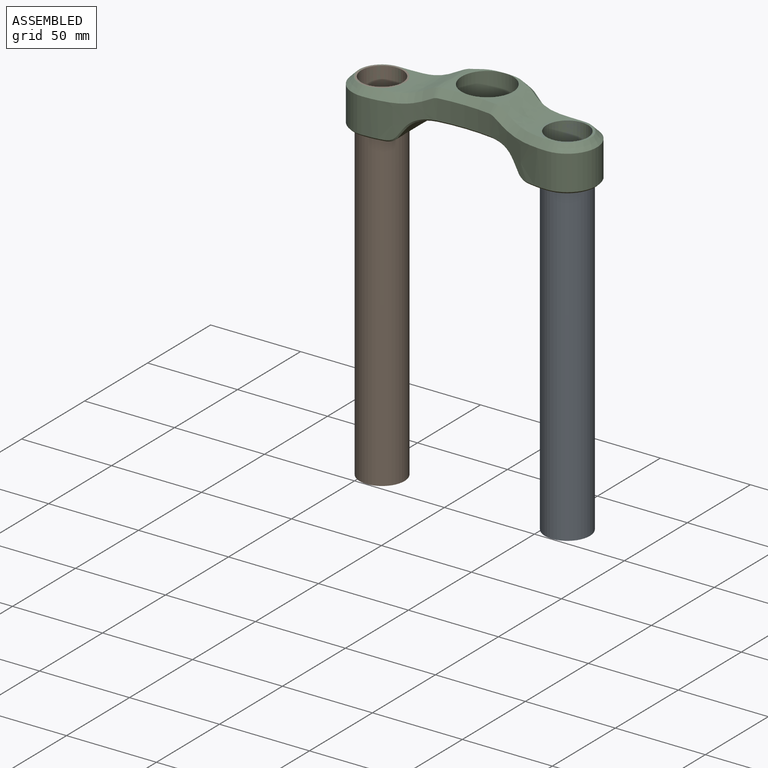
[diagram: assembled view]
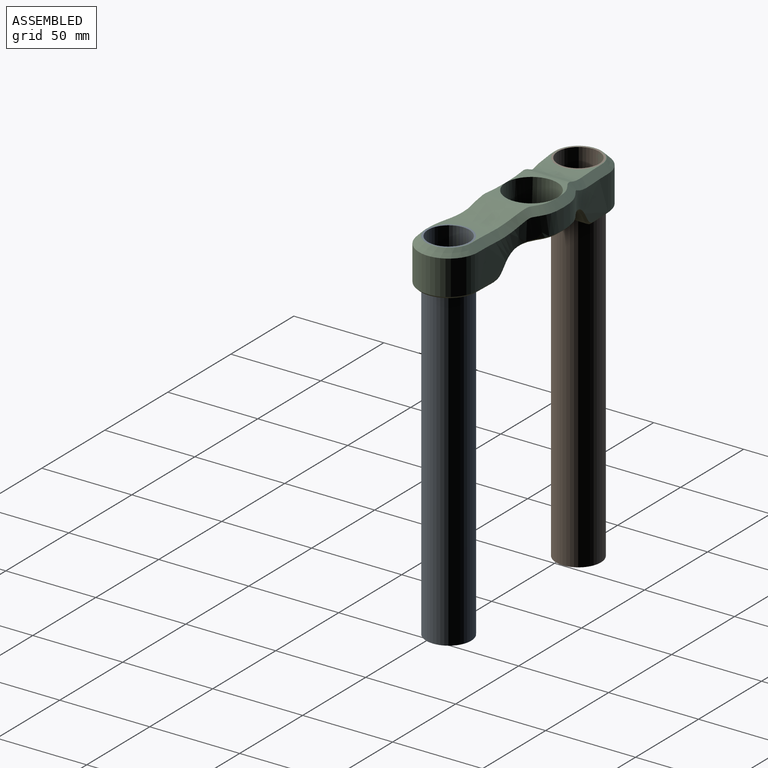
[diagram: assembled view, second angle]
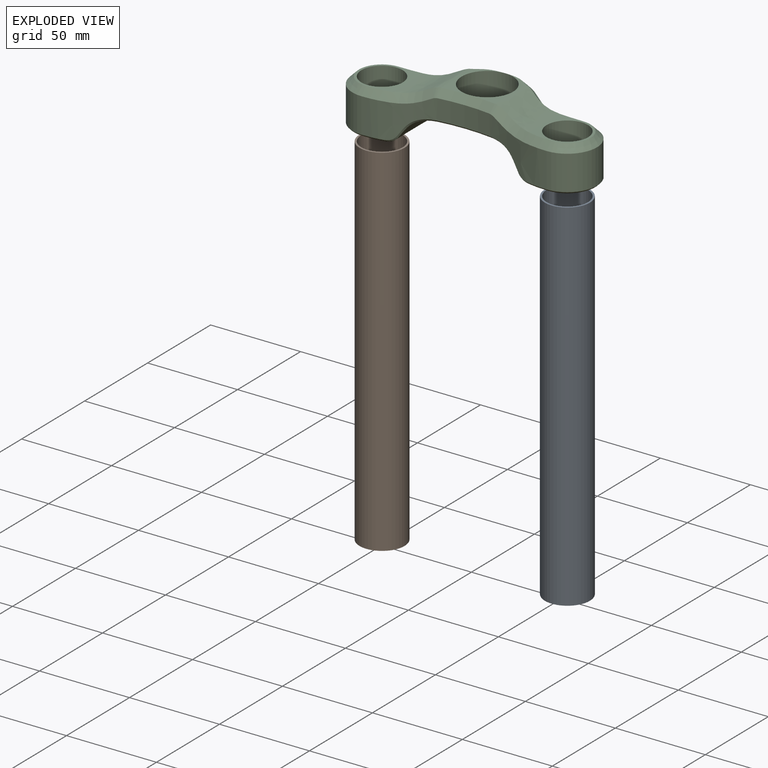
[diagram: exploded view]
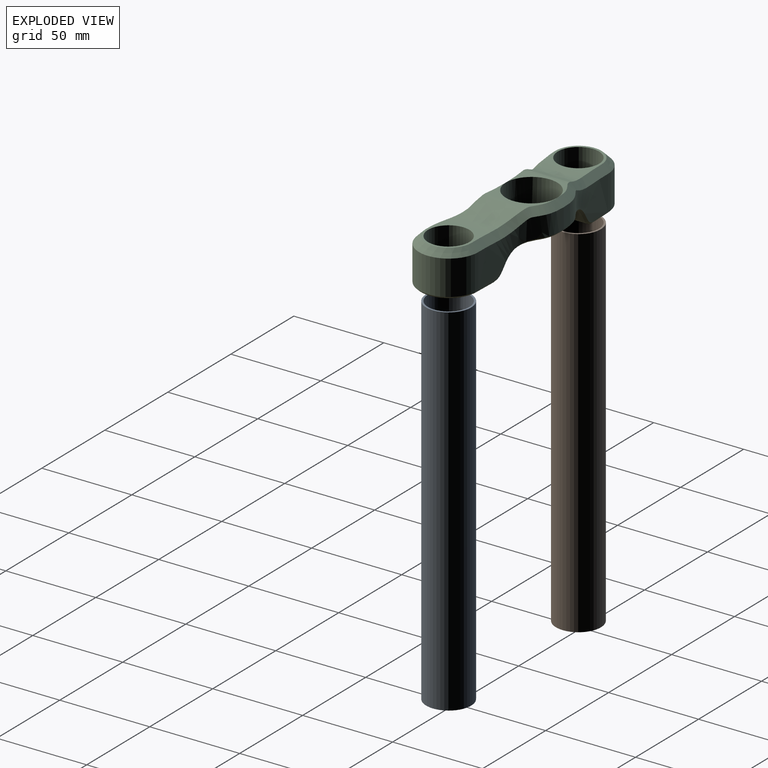
[diagram: exploded view, second angle]
ASSEMBLY  parts=3 mates=4
PART A: 4 faces, bbox 25x25x200 mm
  f0: cylinder r=11.5mm len=200mm, axis (0,0,-1), area 14451.3mm2, adj f2,f3
  f1: cylinder r=12.5mm len=200mm, axis (0,0,-1), area 15708mm2, adj f2,f3
  f2: plane 25x25mm, normal (0,0,1), area 75.4mm2, adj f0,f1
  f3: plane 25x25mm, normal (0,0,-1), area 75.4mm2, adj f0,f1
PART B: same geometry as A
PART C: 48 faces, bbox 136.8x45.3x30.8 mm
  f0: plane 30.15x15.53mm, normal (0,0,1), area 91.9mm2, adj f6,f16,f24,f31
  f1: plane 31.94x27.76mm, normal (0,0,-1), area 320.4mm2, adj f8,f17,f41,f43,f45
  f2: extruded ~51.5x25.3mm, area 776.9mm2, adj f3,f7,f25,f27,f29,f37,f39,f41
  f3: cylinder r=16.5mm len=33mm, axis (0,0,-1), area 1000.4mm2, adj f2,f4,f23,f43
  f4: extruded ~51.5x25.3mm, area 743.2mm2, adj f3,f5,f20,f21,f22,f45,f46,f47
  f5: extruded ~51.5x25.3mm, area 743.1mm2, adj f4,f11,f24,f26,f28,f40,f42,f44
  f6: cylinder r=14.3mm len=28.6mm, axis (0,0,-1), area 1437.6mm2, adj f0,f9,f18
  f7: extruded ~51.5x25.3mm, area 776.9mm2, adj f2,f11,f31,f32,f33,f34,f35,f36
  f8: cylinder r=11.5mm len=24mm, axis (0,0,-1), area 1734.2mm2, adj f1,f14
  f9: plane 30.15x15.53mm, normal (0,0,1), area 91.7mm2, adj f6,f13,f22,f29
  f10: plane 31.94x27.76mm, normal (0,0,-1), area 320.4mm2, adj f12,f19,f36,f38,f40
  f11: cylinder r=16.5mm len=33mm, axis (0,0,-1), area 1000.4mm2, adj f5,f7,f30,f38
  f12: cylinder r=11.5mm len=24mm, axis (0,0,-1), area 1734.2mm2, adj f10,f15
  f13: extruded ~30.63x23mm, area 590.5mm2, adj f9,f14,f20,f27
  f14: plane 27.09x26.88mm, normal (0,0,1), area 182.1mm2, adj f8,f13,f21,f23,f25
  f15: plane 27.09x26.88mm, normal (0,0,1), area 182.1mm2, adj f12,f16,f28,f30,f32
  f16: extruded ~30.63x23mm, area 590.5mm2, adj f0,f15,f26,f33
  f17: extruded ~37.03x24.83mm, area 919.7mm2, adj f1,f18,f39,f47
  f18: plane 35.6x30.55mm, normal (0,0,-1), area 350.5mm2, adj f6,f17,f19,f35,f37,f44,f46
  f19: extruded ~37.03x24.83mm, area 919.7mm2, adj f10,f18,f34,f42
  f20: bspline ~23.29x9.7mm, area 121.1mm2, adj f4,f13,f21,f22
  f21: bspline ~13.5x4.16mm, area 69.9mm2, adj f4,f14,f20,f23
  f22: bspline ~16.95x8.49mm, area 89.6mm2, adj f4,f9,f20,f24
  f23: cone r=12.8mm half-angle=45deg, axis (0,0,-1), area 240.8mm2, adj f3,f14,f21,f25
  f24: bspline ~16.95x8.49mm, area 89.6mm2, adj f0,f5,f22,f26
  f25: bspline ~14.4x5.41mm, area 73.8mm2, adj f2,f14,f23,f27
  f26: bspline ~23.29x9.7mm, area 121.1mm2, adj f5,f16,f24,f28
  f27: bspline ~23.54x9.7mm, area 132.3mm2, adj f2,f13,f25,f29
  f28: bspline ~13.5x4.16mm, area 69.9mm2, adj f5,f15,f26,f30
  f29: bspline ~15x4.68mm, area 77.3mm2, adj f2,f9,f27,f31
  f30: cone r=12.8mm half-angle=45deg, axis (0,0,-1), area 240.8mm2, adj f11,f15,f28,f32
  f31: bspline ~15x4.68mm, area 77.3mm2, adj f0,f7,f29,f33
  f32: bspline ~14.4x5.41mm, area 73.8mm2, adj f7,f15,f30,f33
  f33: bspline ~23.54x9.7mm, area 132.3mm2, adj f7,f16,f31,f32
  f34: bspline ~24.98x15mm, area 40.6mm2, adj f7,f19,f35,f36
  f35: bspline ~15x2.03mm, area 21.2mm2, adj f7,f18,f34,f37
  f36: bspline ~11.88x2.2mm, area 16.8mm2, adj f7,f10,f34,f38
  f37: bspline ~15x2.03mm, area 21.2mm2, adj f2,f18,f35,f39
  f38: cone r=15.5mm half-angle=45deg, axis (0,0,1), area 71.1mm2, adj f10,f11,f36,f40
  f39: bspline ~24.98x15mm, area 40.6mm2, adj f2,f17,f37,f41
  f40: bspline ~11.67x1.34mm, area 16.5mm2, adj f5,f10,f38,f42
  f41: bspline ~11.88x2.2mm, area 16.8mm2, adj f1,f2,f39,f43
  f42: bspline ~24.9x15mm, area 45.8mm2, adj f5,f19,f40,f44
  f43: cone r=16.5mm half-angle=45deg, axis (0,0,1), area 71.1mm2, adj f1,f3,f41,f45
  f44: bspline ~15.55x5.28mm, area 22.9mm2, adj f5,f18,f42,f46
  f45: bspline ~11.67x1.34mm, area 16.5mm2, adj f1,f4,f43,f47
  f46: bspline ~15.55x5.28mm, area 22.9mm2, adj f4,f18,f44,f47
  f47: bspline ~24.9x15mm, area 45.8mm2, adj f4,f17,f45,f46
PLACE A t=(54.05,-1.01,-92.71)mm
PLACE B t=(-48.95,-1.01,-92.71)mm
PLACE C t=(2.55,8.99,83.29)mm
MATE cylindrical A.f1 <-> C.f3  axis (0,0,-1) through (54.05,-1.01,7.29)mm
MATE cylindrical B.f1 <-> C.f11  axis (0,0,-1) through (-48.95,-1.01,7.29)mm
MATE planar B.f1 <-> C.f15  axis (0,0,1) through (-48.95,-1.01,107.29)mm
MATE planar C.f14 <-> A.f1  axis (0,0,1) through (49.22,-0.37,107.29)mm
